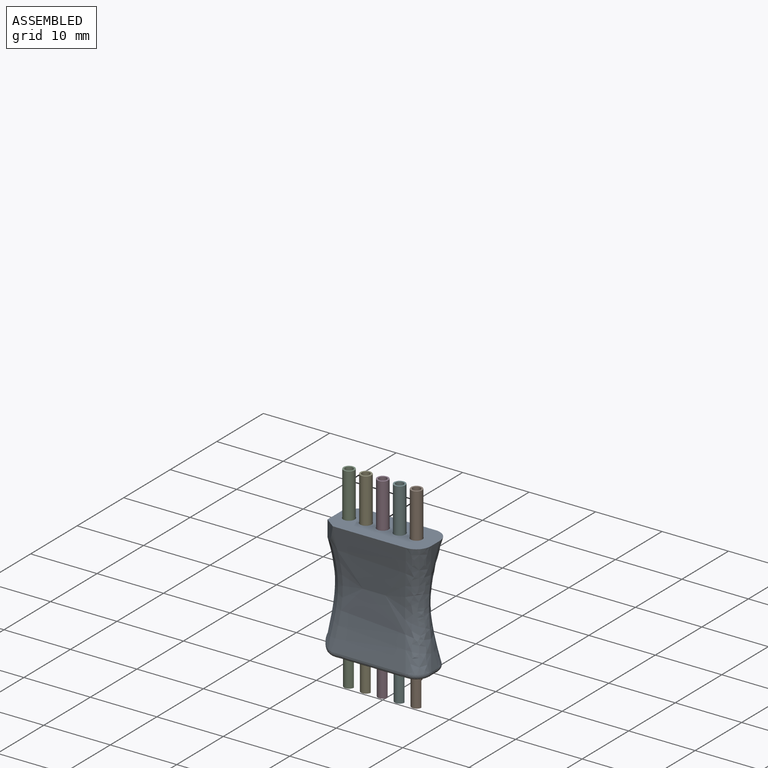
[diagram: assembled view]
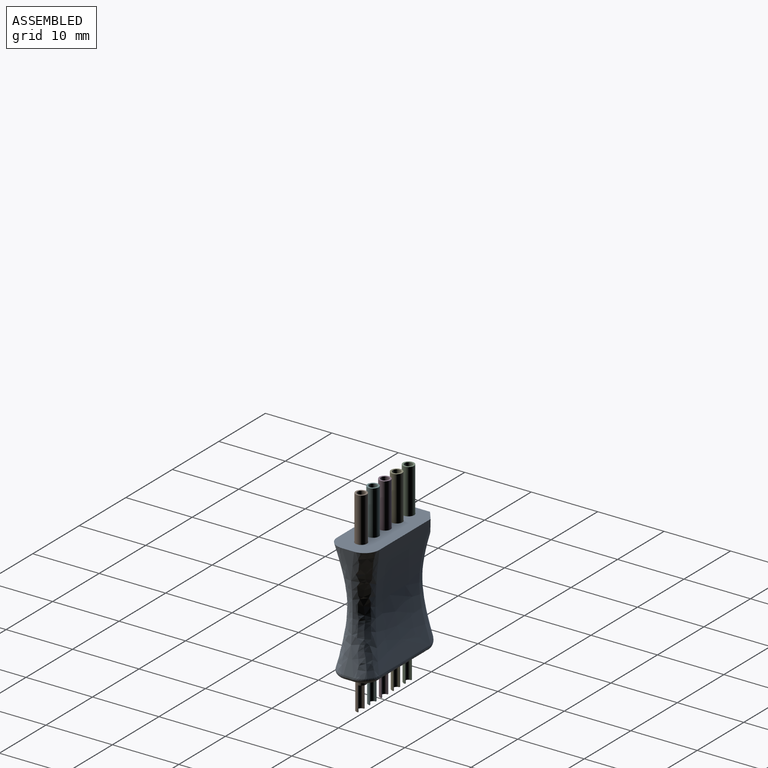
[diagram: assembled view, second angle]
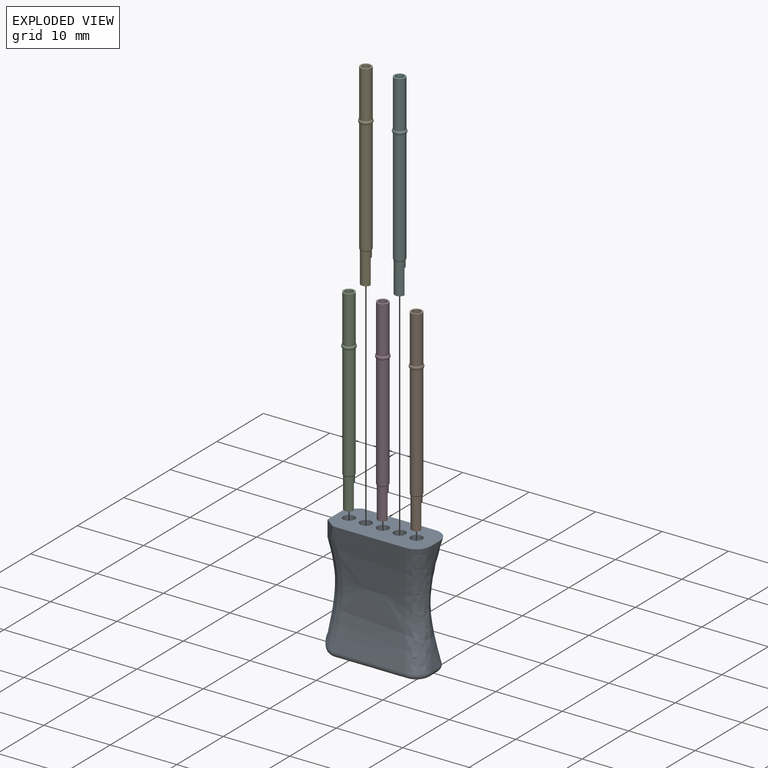
[diagram: exploded view]
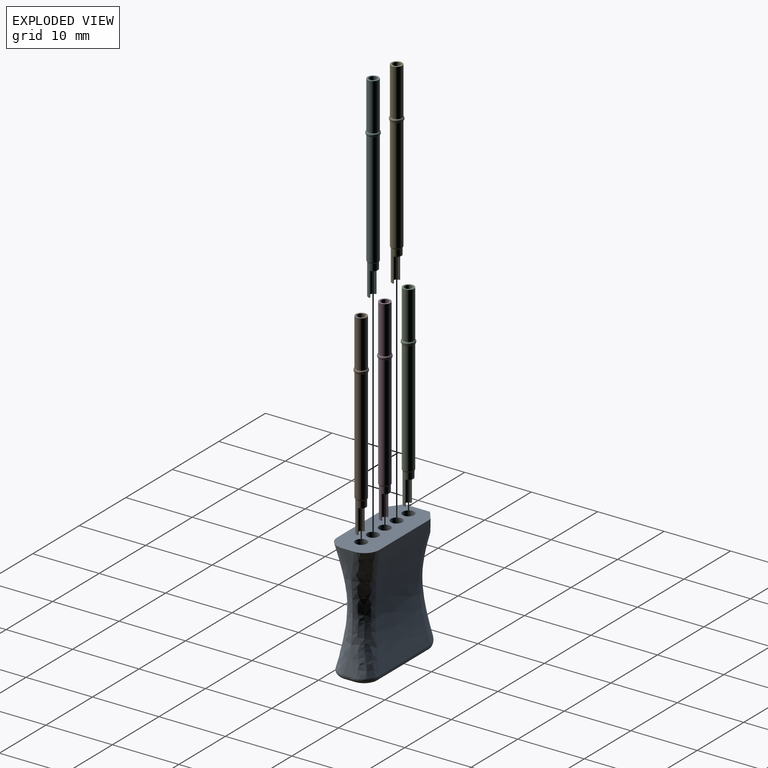
[diagram: exploded view, second angle]
ASSEMBLY  parts=6 mates=5
PART A: 29 faces, bbox 18.2x9.7x25.3 mm
  f0: bspline ~15.34x6.35mm, area 2.9mm2, adj f15,f16,f24
  f1: bspline ~15.34x6.35mm, area 0.8mm2, adj f17,f18,f19
  f2: bspline ~18x15.88mm, area 176.1mm2, adj f4,f14,f16,f19,f21,f22
  f3: plane 12.48x4.79mm, normal (0,0,-1), area 47.5mm2, adj f7,f8,f9,f10,f11,f17,f22,f23
  f4: plane 15.28x6.7mm, normal (0,0,1), area 78.4mm2, adj f2,f5,f6,f7,f8,f9,f10,f11
  f5: bspline ~18x15.88mm, area 176.1mm2, adj f4,f12,f15,f18,f26,f27
  f6: bspline ~14.66x6.35mm, area 3.7mm2, adj f4,f15,f16
  f7: cylinder r=0.88mm len=18mm, axis (0,0,1), area 99mm2, adj f3,f4
  f8: cylinder r=0.88mm len=18mm, axis (0,0,1), area 99mm2, adj f3,f4
  f9: cylinder r=0.88mm len=18mm, axis (0,0,1), area 99mm2, adj f3,f4
  f10: cylinder r=0.88mm len=18mm, axis (0,0,1), area 99mm2, adj f3,f4
  f11: cylinder r=0.88mm len=18mm, axis (0,0,1), area 99mm2, adj f3,f4,f17
  f12: plane 3.67x2.8mm, normal (-0.6,0.8,0), area 4mm2, adj f4,f5,f13,f18
  f13: plane 7.4x3.93mm, normal (-1,0,0), area 18.4mm2, adj f4,f12,f14,f18,f19
  f14: plane 3.67x2.8mm, normal (-0.6,-0.8,0), area 4mm2, adj f2,f4,f13,f19
  f15: bspline ~19.81x3.79mm, area 61.6mm2, adj f0,f4,f5,f6,f16,f25
  f16: bspline ~19.81x3.79mm, area 61.6mm2, adj f0,f2,f4,f6,f15,f23
  f17: bspline ~5.78x2.63mm, area 12.6mm2, adj f1,f3,f11,f20,f21,f27,f28
  f18: bspline ~24.2x4.7mm, area 45.3mm2, adj f1,f5,f12,f13,f19,f28
  f19: bspline ~24.2x4.7mm, area 45.3mm2, adj f1,f2,f13,f14,f18,f20
  f20: bspline ~2.79x2.61mm, area 1.9mm2, adj f17,f19,f21
  f21: bspline ~1.48x0.89mm, area 0.4mm2, adj f2,f17,f20,f22
  f22: bspline ~16.28x0.78mm, area 12.2mm2, adj f2,f3,f21,f23
  f23: bspline ~2.96x2.91mm, area 3.7mm2, adj f3,f16,f22,f24
  f24: bspline ~3.68x0.74mm, area 1.7mm2, adj f0,f3,f23,f25
  f25: bspline ~2.96x2.91mm, area 3.7mm2, adj f3,f15,f24,f26
  f26: bspline ~14.25x0.78mm, area 12.2mm2, adj f3,f5,f25,f27
  f27: bspline ~1.1x0.8mm, area 0.4mm2, adj f5,f17,f26,f28
  f28: bspline ~2.79x2.61mm, area 1.9mm2, adj f17,f18,f27
PART B: 13 faces, bbox 2.1x2.1x29.6 mm
  f0: plane 1.47x0.74mm, normal (0,0,-1), area 0.3mm2, adj f2,f8,f10,f11
  f1: torus R=0.58mm, axis (0,0,-1), area 1.2mm2, adj f2,f9
  f2: cylinder r=0.74mm len=4.7mm, axis (0,0,-1), area 13.2mm2, adj f0,f1,f10,f11,f12
  f3: torus R=0.71mm, axis (0,0,-1), area 1.5mm2, adj f5,f9
  f4: torus R=0.71mm, axis (0,0,1), area 1.5mm2, adj f5,f7
  f5: cylinder r=0.97mm len=1.93mm, axis (0,0,-1), area 0.4mm2, adj f3,f4
  f6: plane 1.68x1.68mm, normal (0,0,1), area 1.1mm2, adj f7,f8
  f7: cylinder r=0.84mm len=7.12mm, axis (0,0,-1), area 37.5mm2, adj f4,f6
  f8: cylinder r=0.6mm len=29.59mm, axis (0,0,1), area 104mm2, adj f0,f6,f10,f11,f12
  f9: cylinder r=0.84mm len=17.07mm, axis (0,0,-1), area 89.9mm2, adj f1,f3
  f10: plane 3.7x0.14mm, normal (0,1,0), area 0.5mm2, adj f0,f2,f8,f12
  f11: plane 3.7x0.14mm, normal (0,1,0), area 0.5mm2, adj f0,f2,f8,f12
  f12: plane 1.47x0.74mm, normal (0,0,-1), area 0.3mm2, adj f2,f8,f10,f11
PART C: same geometry as B
PART D: same geometry as B
PART E: same geometry as B
PART F: same geometry as B
PLACE A at identity
PLACE B t=(5.08,0,-4.9)mm
PLACE C t=(-5.08,0,-4.9)mm
PLACE D t=(0,0,-4.9)mm
PLACE E t=(-2.54,0,-4.9)mm
PLACE F t=(2.54,0,-4.9)mm
MATE slider B.f3 <-> A.f8  axis (0,0,-1) through (5.08,0,0)mm
MATE slider F.f3 <-> A.f9  axis (0,0,-1) through (2.54,0,0)mm
MATE slider E.f3 <-> A.f10  axis (0,0,-1) through (-2.54,0,0)mm
MATE slider D.f3 <-> A.f7  axis (0,0,-1) through (0,0,0)mm
MATE slider C.f3 <-> A.f11  axis (0,0,-1) through (-5.08,0,0)mm
